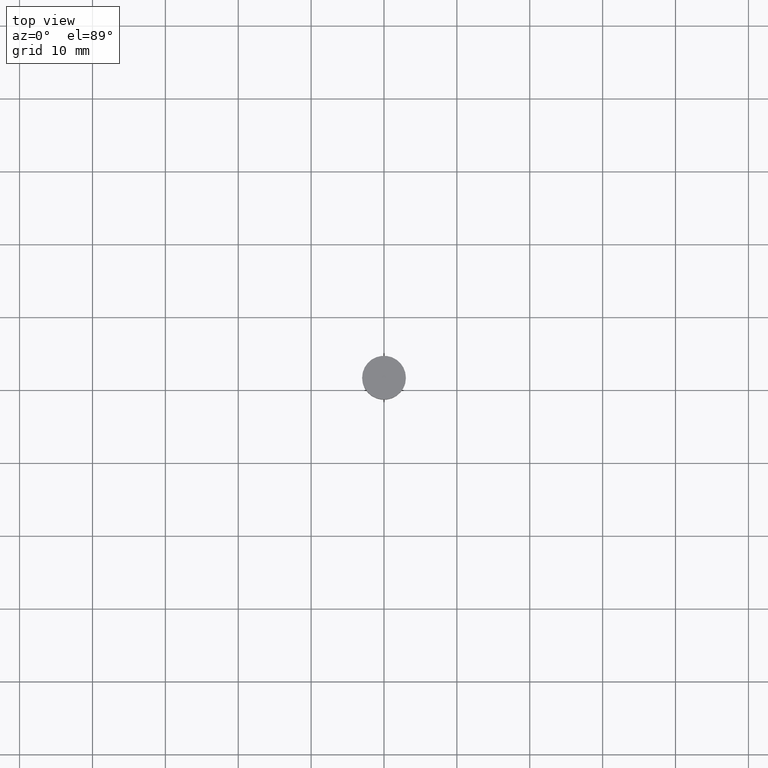
[diagram: clean part render]
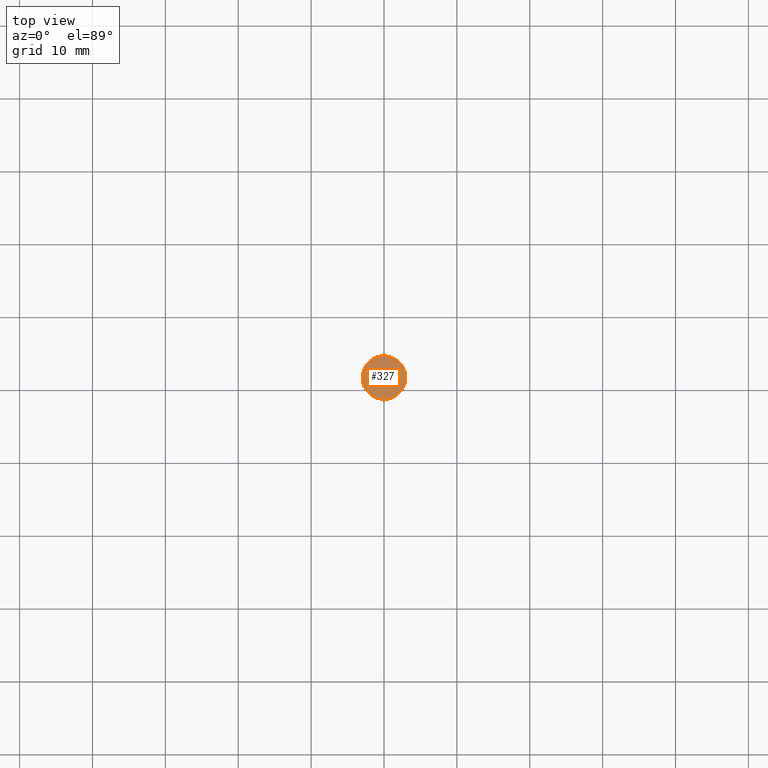
[diagram: same view with one face highlighted and labeled with its STEP entity id]
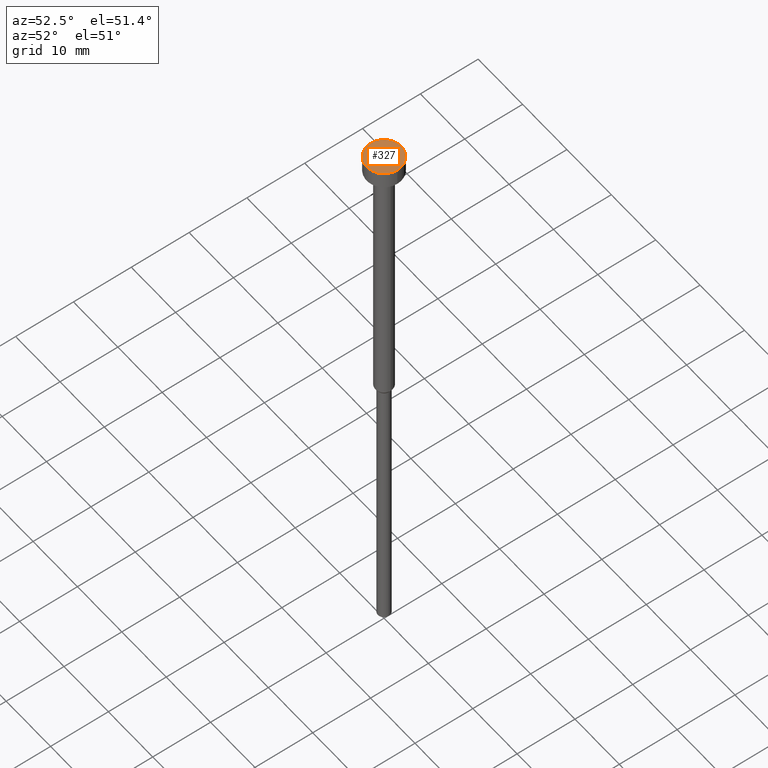
[diagram: same view with one face highlighted and labeled with its STEP entity id]
A machine part, top view. The second image highlights one B-rep face of the part: STEP entity #327.
A second angle (auxiliary view) of the same face is appended — the face is thin or edge-on in the first view.
In plain terms, the highlighted planar face has unit normal (0, -0, 1).
Its self-contained STEP definition (entity closure, byte-faithful):
#1 = VERTEX_POINT ( 'NONE', #241 ) ;
#9 = ORIENTED_EDGE ( 'NONE', *, *, #312, .T. ) ;
#23 = CARTESIAN_POINT ( 'NONE',  ( 0.000000000000000000, 0.000000000000000000, -3.673940397442059868E-16 ) ) ;
#27 = FACE_OUTER_BOUND ( 'NONE', #60, .T. ) ;
#32 = AXIS2_PLACEMENT_3D ( 'NONE', #23, #184, #43 ) ;
#43 = DIRECTION ( 'NONE',  ( 1.000000000000000000, 0.000000000000000000, 0.000000000000000000 ) ) ;
#51 = CARTESIAN_POINT ( 'NONE',  ( 0.000000000000000000, 0.000000000000000000, -1.836970198721029934E-16 ) ) ;
#53 = DIRECTION ( 'NONE',  ( -0.000000000000000000, -0.000000000000000000, 1.000000000000000000 ) ) ;
#56 = EDGE_CURVE ( 'NONE', #287, #1, #74, .T. ) ;
#60 = EDGE_LOOP ( 'NONE', ( #300, #9 ) ) ;
#74 = CIRCLE ( 'NONE', #32, 3.000000000000000000 ) ;
#144 = DIRECTION ( 'NONE',  ( 1.000000000000000000, 0.000000000000000000, 0.000000000000000000 ) ) ;
#163 = CARTESIAN_POINT ( 'NONE',  ( 3.000000000000000000, 0.000000000000000000, -3.673940397442059868E-16 ) ) ;
#178 = AXIS2_PLACEMENT_3D ( 'NONE', #51, #187, #325 ) ;
#184 = DIRECTION ( 'NONE',  ( -0.000000000000000000, -0.000000000000000000, 1.000000000000000000 ) ) ;
#187 = DIRECTION ( 'NONE',  ( 0.000000000000000000, -0.000000000000000000, 1.000000000000000000 ) ) ;
#241 = CARTESIAN_POINT ( 'NONE',  ( -3.000000000000000000, 3.673940397442059868E-16, -3.673940397442059868E-16 ) ) ;
#252 = CIRCLE ( 'NONE', #324, 3.000000000000000000 ) ;
#287 = VERTEX_POINT ( 'NONE', #163 ) ;
#290 = CARTESIAN_POINT ( 'NONE',  ( 0.000000000000000000, 0.000000000000000000, -3.673940397442059868E-16 ) ) ;
#300 = ORIENTED_EDGE ( 'NONE', *, *, #56, .T. ) ;
#311 = PLANE ( 'NONE',  #178 ) ;
#312 = EDGE_CURVE ( 'NONE', #1, #287, #252, .T. ) ;
#324 = AXIS2_PLACEMENT_3D ( 'NONE', #290, #53, #144 ) ;
#325 = DIRECTION ( 'NONE',  ( 1.000000000000000000, 0.000000000000000000, 0.000000000000000000 ) ) ;
#327 = ADVANCED_FACE ( 'NONE', ( #27 ), #311, .T. ) ;